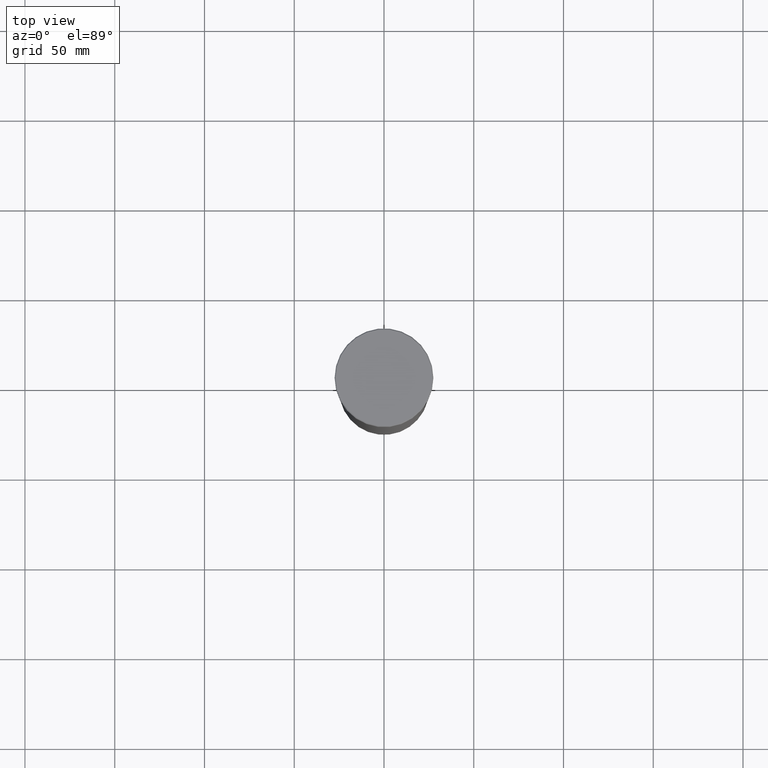
[diagram: clean part render]
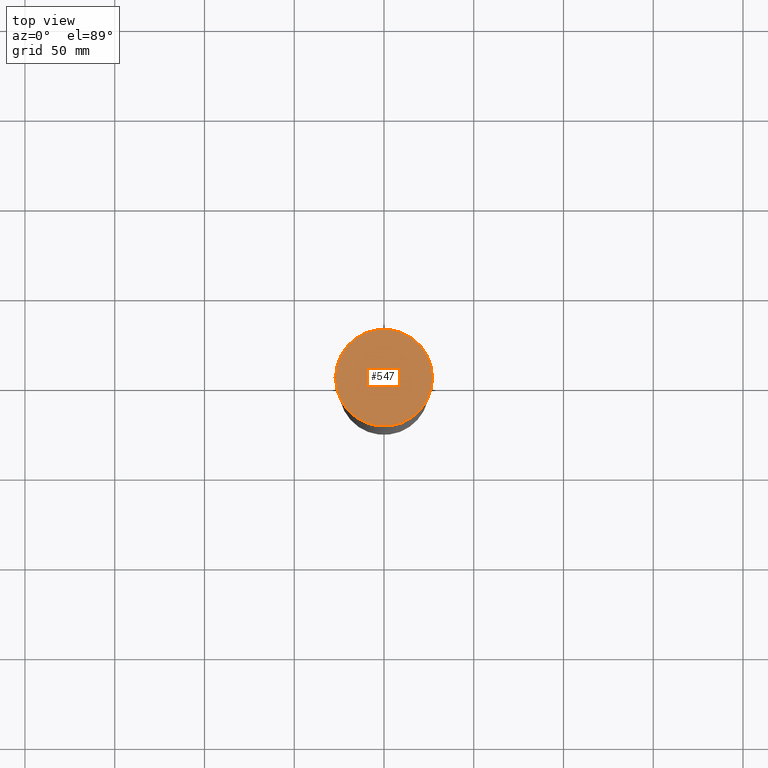
[diagram: same view with one face highlighted and labeled with its STEP entity id]
A machine part, top view. The second image highlights one B-rep face of the part: STEP entity #547.
In plain terms, the highlighted planar face has unit normal (0, -0, 1).
Its self-contained STEP definition (entity closure, byte-faithful):
#17 = DIRECTION ( 'NONE',  ( 0.000000000000000000, -0.000000000000000000, 1.000000000000000000 ) ) ;
#34 = AXIS2_PLACEMENT_3D ( 'NONE', #61, #17, #344 ) ;
#36 = VERTEX_POINT ( 'NONE', #367 ) ;
#40 = EDGE_LOOP ( 'NONE', ( #411, #273 ) ) ;
#58 = CARTESIAN_POINT ( 'NONE',  ( 0.000000000000000000, 0.000000000000000000, 0.000000000000000000 ) ) ;
#61 = CARTESIAN_POINT ( 'NONE',  ( 0.000000000000000000, 0.000000000000000000, 0.000000000000000000 ) ) ;
#109 = DIRECTION ( 'NONE',  ( 1.000000000000000000, 0.000000000000000000, 0.000000000000000000 ) ) ;
#123 = AXIS2_PLACEMENT_3D ( 'NONE', #58, #514, #109 ) ;
#188 = CARTESIAN_POINT ( 'NONE',  ( 0.000000000000000000, 0.000000000000000000, 0.000000000000000000 ) ) ;
#273 = ORIENTED_EDGE ( 'NONE', *, *, #554, .T. ) ;
#309 = CIRCLE ( 'NONE', #123, 26.99999999999996447 ) ;
#331 = CARTESIAN_POINT ( 'NONE',  ( -26.99999999999996447, 0.000000000000000000, 0.000000000000000000 ) ) ;
#335 = FACE_OUTER_BOUND ( 'NONE', #40, .T. ) ;
#344 = DIRECTION ( 'NONE',  ( 1.000000000000000000, 0.000000000000000000, 0.000000000000000000 ) ) ;
#367 = CARTESIAN_POINT ( 'NONE',  ( 26.99999999999996447, 3.337162527676535548E-15, 0.000000000000000000 ) ) ;
#372 = CIRCLE ( 'NONE', #517, 26.99999999999996447 ) ;
#390 = EDGE_CURVE ( 'NONE', #509, #36, #372, .T. ) ;
#411 = ORIENTED_EDGE ( 'NONE', *, *, #390, .T. ) ;
#432 = DIRECTION ( 'NONE',  ( -0.000000000000000000, -0.000000000000000000, 1.000000000000000000 ) ) ;
#509 = VERTEX_POINT ( 'NONE', #331 ) ;
#514 = DIRECTION ( 'NONE',  ( -0.000000000000000000, -0.000000000000000000, 1.000000000000000000 ) ) ;
#516 = DIRECTION ( 'NONE',  ( 1.000000000000000000, 0.000000000000000000, 0.000000000000000000 ) ) ;
#517 = AXIS2_PLACEMENT_3D ( 'NONE', #188, #432, #516 ) ;
#547 = ADVANCED_FACE ( 'NONE', ( #335 ), #560, .T. ) ;
#554 = EDGE_CURVE ( 'NONE', #36, #509, #309, .T. ) ;
#560 = PLANE ( 'NONE',  #34 ) ;